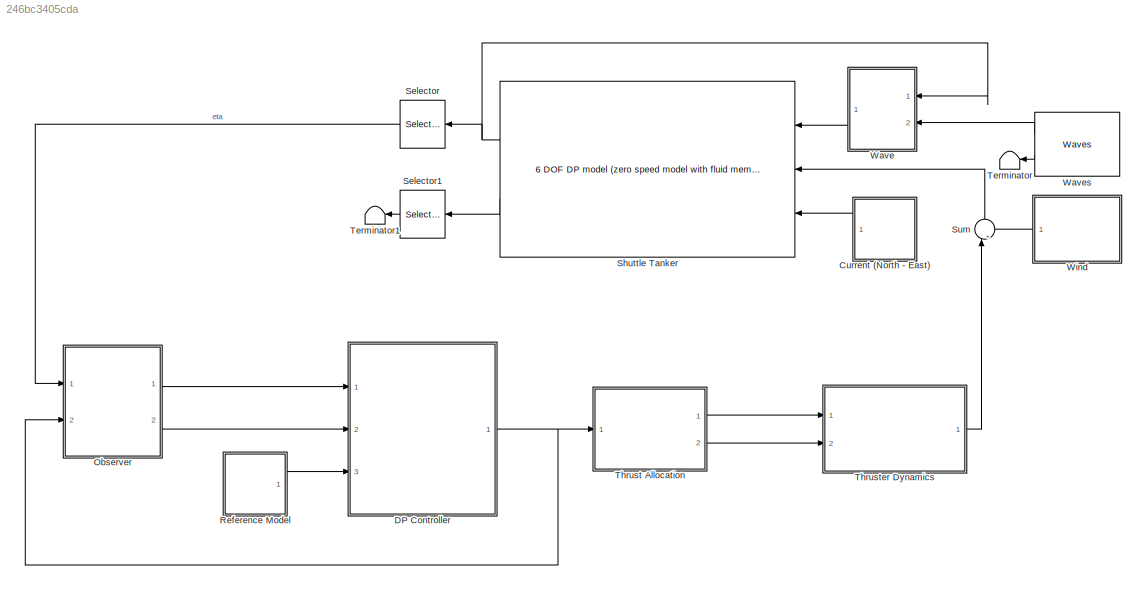
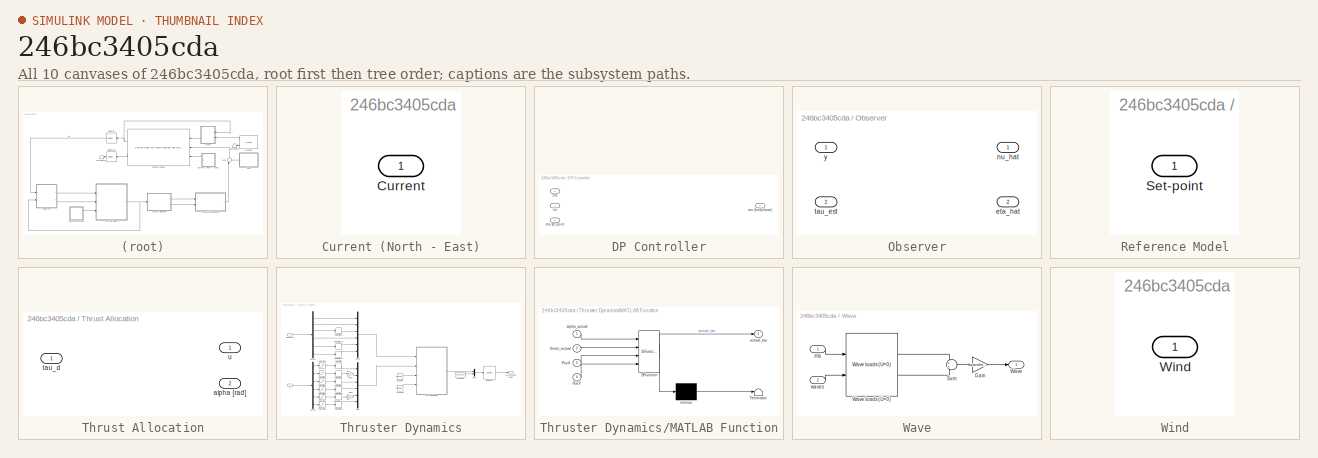
[diagram: thumbnail index - all 10 canvases of the model, root first then tree order]
MODEL slx_246bc3405cda
KIND model
CONFIG AbsTol = auto
CONFIG EnableMultiTasking = off
CONFIG FixedStep = 0.1
CONFIG MaxStep = auto
CONFIG MinStep = auto
CONFIG RelTol = 1e-3
CONFIG SampleTimeConstraint = Unconstrained
CONFIG Solver = FixedStepAuto
CONFIG SolverName = FixedStepAuto
CONFIG StartTime = 0.0
CONFIG StopTime = 500
BLOCK [SubSystem] Current (North - East)
  Ports = [0, 1]
  RequestExecContextInheritance = off
BLOCK [Outport] Current (North - East)/Current
  IconDisplay = Port number
BLOCK [SubSystem] DP Controller
  Ports = [3, 1]
  RequestExecContextInheritance = off
BLOCK [Inport] DP Controller/eta
  IconDisplay = Port number
  Port = 2
BLOCK [Inport] DP Controller/eta set point
  IconDisplay = Port number
  Port = 3
BLOCK [Inport] DP Controller/nu
  IconDisplay = Port number
BLOCK [Outport] DP Controller/tau (body frame)
  IconDisplay = Port number
BLOCK [SubSystem] Observer
  Ports = [2, 2]
  RequestExecContextInheritance = off
BLOCK [Outport] Observer/eta_hat
  IconDisplay = Port number
  Port = 2
BLOCK [Outport] Observer/nu_hat
  IconDisplay = Port number
BLOCK [Inport] Observer/tau_est
  IconDisplay = Port number
  Port = 2
BLOCK [Inport] Observer/y
  IconDisplay = Port number
BLOCK [SubSystem] Reference Model
  Ports = [0, 1]
  RequestExecContextInheritance = off
BLOCK [Outport] Reference Model/Set-point
  IconDisplay = Port number
BLOCK [Selector] Selector
  IndexOptions = Index vector (dialog)
  Indices = [1 2 6]
  InputPortWidth = 6
  OutputSizes = 1
  Ports = [1, 1]
BLOCK [Selector] Selector1
  IndexOptions = Index vector (dialog)
  Indices = [1 2 6]
  InputPortWidth = 6
  OutputSizes = 1
  Ports = [1, 1]
BLOCK [Reference] Shuttle Tanker  REF=marine_hydro/Hydro Library/6 DOF DP model
 (zero speed model with fluid memory)
  Ports = [3, 2]
  SourceBlock = marine_hydro/Hydro Library/6 DOF DP model\n (zero speed model with fluid memory)
  SourceProductName = MSS Hydro
  SourceType = 6 DOF zero speed model
BLOCK [Sum] Sum
  IconShape = round
  InputSameDT = off
  Inputs = |++
  OutDataTypeStr = Inherit: Inherit via internal rule
  Ports = [2, 1]
  SaturateOnIntegerOverflow = off
BLOCK [Terminator] Terminator
BLOCK [Terminator] Terminator1
BLOCK [SubSystem] Thrust Allocation
  Ports = [1, 2]
  RequestExecContextInheritance = off
BLOCK [Outport] Thrust Allocation/alpha [rad]
  IconDisplay = Port number
  Port = 2
BLOCK [Inport] Thrust Allocation/tau_d
  IconDisplay = Port number
BLOCK [Outport] Thrust Allocation/u
  IconDisplay = Port number
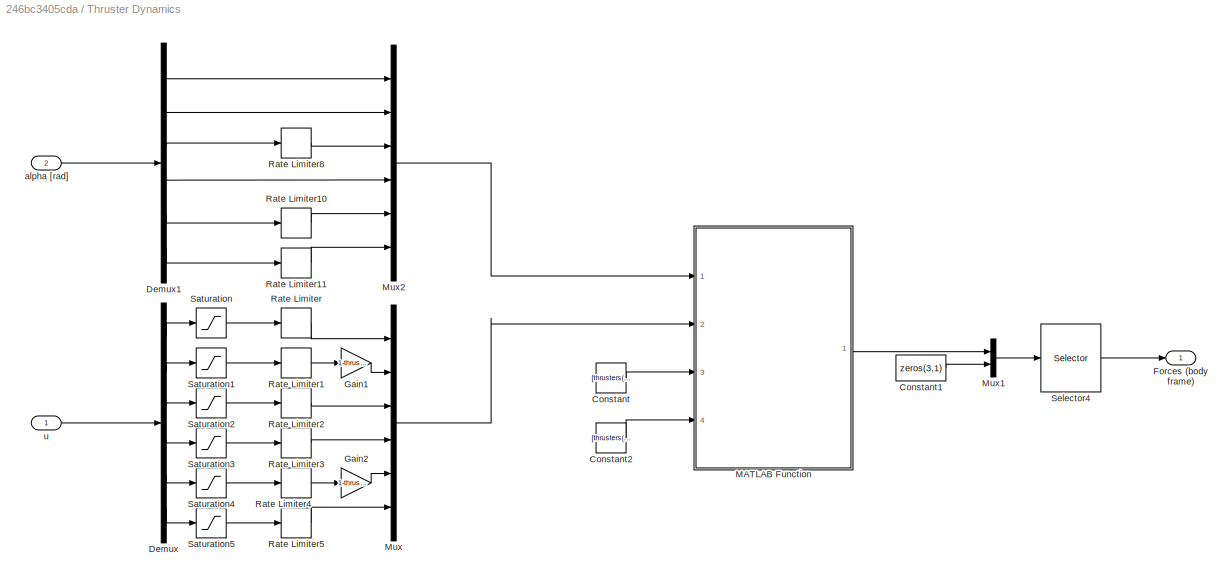
BLOCK [SubSystem] Thruster Dynamics
  Ports = [2, 1]
  RequestExecContextInheritance = off
BLOCK [Constant] Thruster Dynamics/Constant
  Value = [thrusters(1).xposition, thrusters(2).xposition, thrusters(3).xposition, thrusters(4).xposition, thrusters(5).xposition, thrusters(6).xposition]
BLOCK [Constant] Thruster Dynamics/Constant1
  Value = zeros(3,1)
BLOCK [Constant] Thruster Dynamics/Constant2
  Value = [thrusters(1).yposition, thrusters(2).yposition, thrusters(3).yposition, thrusters(4).yposition, thrusters(5).yposition, thrusters(6).yposition]
BLOCK [Demux] Thruster Dynamics/Demux
  DisplayOption = bar
  Outputs = 6
  Ports = [1, 6]
BLOCK [Demux] Thruster Dynamics/Demux1
  DisplayOption = bar
  Outputs = 6
  Ports = [1, 6]
BLOCK [Outport] Thruster Dynamics/Forces (body frame) 
  IconDisplay = Port number
BLOCK [Gain] Thruster Dynamics/Gain1
  Gain = 1-thrusterfault
  OutDataTypeStr = Inherit: Inherit via internal rule
  ParamDataTypeStr = Inherit: Inherit via internal rule
  SaturateOnIntegerOverflow = off
BLOCK [Gain] Thruster Dynamics/Gain2
  Gain = 1-thrusterfault
  OutDataTypeStr = Inherit: Inherit via internal rule
  ParamDataTypeStr = Inherit: Inherit via internal rule
  SaturateOnIntegerOverflow = off
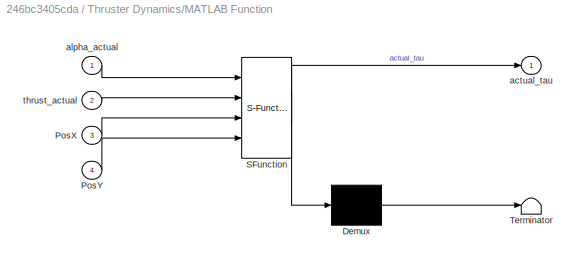
BLOCK [SubSystem] Thruster Dynamics/MATLAB Function
  ErrorFcn = Stateflow.Translate.translate
  PermitHierarchicalResolution = ExplicitOnly
  Ports = [4, 1]
  RequestExecContextInheritance = off
  SFBlockType = MATLAB Function
  TreatAsAtomicUnit = on
BLOCK [Demux] Thruster Dynamics/MATLAB Function/ Demux 
  Outputs = 1
  Ports = [1, 1]
BLOCK [S-Function] Thruster Dynamics/MATLAB Function/ SFunction 
  EnableBusSupport = on
  FunctionName = sf_sfun
  PortCounts = [4 2]
  Ports = [4, 2]
  SFcnIsStateOwnerBlock = off
  SFunctionDeploymentMode = off
  Tag = Stateflow S-Function part2 4
BLOCK [Terminator] Thruster Dynamics/MATLAB Function/ Terminator 
BLOCK [Inport] Thruster Dynamics/MATLAB Function/PosX
  IconDisplay = Port number
  Port = 3
BLOCK [Inport] Thruster Dynamics/MATLAB Function/PosY
  IconDisplay = Port number
  Port = 4
BLOCK [Outport] Thruster Dynamics/MATLAB Function/actual_tau
  IconDisplay = Port number
BLOCK [Inport] Thruster Dynamics/MATLAB Function/alpha_actual
  IconDisplay = Port number
BLOCK [Inport] Thruster Dynamics/MATLAB Function/thrust_actual
  IconDisplay = Port number
  Port = 2
BLOCK [Mux] Thruster Dynamics/Mux
  DisplayOption = bar
  Inputs = 6
  Ports = [6, 1]
BLOCK [Mux] Thruster Dynamics/Mux1
  DisplayOption = bar
  Inputs = 2
  Ports = [2, 1]
BLOCK [Mux] Thruster Dynamics/Mux2
  DisplayOption = bar
  Inputs = 6
  Ports = [6, 1]
BLOCK [RateLimiter] Thruster Dynamics/Rate Limiter
  FallingSlewLimit = -thrusters(1).rate
  RisingSlewLimit = thrusters(1).rate
  SampleTimeMode = inherited
BLOCK [RateLimiter] Thruster Dynamics/Rate Limiter1
  FallingSlewLimit = -thrusters(2).rate
  RisingSlewLimit = thrusters(2).rate
  SampleTimeMode = inherited
BLOCK [RateLimiter] Thruster Dynamics/Rate Limiter10
  FallingSlewLimit = -thrusters(5).rotationspeed
  RisingSlewLimit = thrusters(5).rotationspeed
  SampleTimeMode = inherited
BLOCK [RateLimiter] Thruster Dynamics/Rate Limiter11
  FallingSlewLimit = -thrusters(6).rotationspeed
  RisingSlewLimit = thrusters(6).rotationspeed
  SampleTimeMode = inherited
BLOCK [RateLimiter] Thruster Dynamics/Rate Limiter2
  FallingSlewLimit = -thrusters(3).rate
  RisingSlewLimit = thrusters(3).rate
  SampleTimeMode = inherited
BLOCK [RateLimiter] Thruster Dynamics/Rate Limiter3
  FallingSlewLimit = -thrusters(4).rate
  RisingSlewLimit = thrusters(4).rate
  SampleTimeMode = inherited
BLOCK [RateLimiter] Thruster Dynamics/Rate Limiter4
  FallingSlewLimit = -thrusters(5).rate
  RisingSlewLimit = thrusters(5).rate
  SampleTimeMode = inherited
BLOCK [RateLimiter] Thruster Dynamics/Rate Limiter5
  FallingSlewLimit = -thrusters(6).rate
  RisingSlewLimit = thrusters(6).rate
  SampleTimeMode = inherited
BLOCK [RateLimiter] Thruster Dynamics/Rate Limiter8
  FallingSlewLimit = -thrusters(3).rotationspeed
  RisingSlewLimit = thrusters(3).rotationspeed
  SampleTimeMode = inherited
BLOCK [Saturate] Thruster Dynamics/Saturation
  InputPortMap = u0
  LowerLimit = -thrusters(1).thrust
  Ports = [1, 1]
  UpperLimit = thrusters(1).thrust
BLOCK [Saturate] Thruster Dynamics/Saturation1
  InputPortMap = u0
  LowerLimit = -thrusters(2).thrust
  Ports = [1, 1]
  UpperLimit = thrusters(2).thrust
BLOCK [Saturate] Thruster Dynamics/Saturation2
  InputPortMap = u0
  LowerLimit = -thrusters(3).thrust
  Ports = [1, 1]
  UpperLimit = thrusters(3).thrust
BLOCK [Saturate] Thruster Dynamics/Saturation3
  InputPortMap = u0
  LowerLimit = -thrusters(4).thrust
  Ports = [1, 1]
  UpperLimit = thrusters(4).thrust
BLOCK [Saturate] Thruster Dynamics/Saturation4
  InputPortMap = u0
  LowerLimit = -thrusters(5).thrust
  Ports = [1, 1]
  UpperLimit = thrusters(5).thrust
BLOCK [Saturate] Thruster Dynamics/Saturation5
  InputPortMap = u0
  LowerLimit = -thrusters(6).thrust
  Ports = [1, 1]
  UpperLimit = thrusters(6).thrust
BLOCK [Selector] Thruster Dynamics/Selector4
  IndexOptions = Index vector (dialog)
  Indices = [1 2 4 5 6 3]
  InputPortWidth = 6
  OutputSizes = 1
  Ports = [1, 1]
BLOCK [Inport] Thruster Dynamics/alpha [rad]
  IconDisplay = Port number
  Port = 2
BLOCK [Inport] Thruster Dynamics/u
  IconDisplay = Port number
BLOCK [SubSystem] Wave
  Ports = [2, 1]
  RequestExecContextInheritance = off
BLOCK [Gain] Wave/Gain
  Gain = waveforces
  OutDataTypeStr = Inherit: Inherit via internal rule
  ParamDataTypeStr = Inherit: Inherit via internal rule
  SaturateOnIntegerOverflow = off
BLOCK [Sum] Wave/Sum
  IconShape = round
  InputSameDT = off
  OutDataTypeStr = Inherit: Inherit via internal rule
  Ports = [2, 1]
  SaturateOnIntegerOverflow = off
BLOCK [Outport] Wave/Wave
  IconDisplay = Port number
BLOCK [Reference] Wave/Wave loads (U=0)  REF=marine_hydro/Hydro Library/Wave loads (U=0)
  Ports = [2, 2]
  SourceBlock = marine_hydro/Hydro Library/Wave loads (U=0)
  SourceProductName = MSS Hydro
  SourceType = SubSystem
BLOCK [Inport] Wave/eta
  IconDisplay = Port number
BLOCK [Inport] Wave/waves
  IconDisplay = Port number
  Port = 2
BLOCK [Reference] Waves  REF=marine_gnc/Environment/Waves/Waves  (lib defined in mdl_10d96c221ba8, mdl_45f1105420c6)
  Ports = [0, 2]
  SourceBlock = marine_gnc/Environment/Waves/Waves
  SourceProductName = MSS GNC
  SourceType = Waves
BLOCK [SubSystem] Wind
  Ports = [0, 1]
  RequestExecContextInheritance = off
BLOCK [Outport] Wind/Wind
  IconDisplay = Port number
LINE Current (North - East):1 -> Shuttle Tanker:3
NET DP Controller:1 -> Observer:2, Thrust Allocation:1
LINE Observer:1 -> DP Controller:1
LINE Observer:2 -> DP Controller:2
LINE Reference Model:1 -> DP Controller:3
LINE Selector1:1 -> Terminator1:1
LINE Selector:1 -> Observer:1
NET Shuttle Tanker:1 -> Selector:1, Wave:1
LINE Shuttle Tanker:2 -> Selector1:1
LINE Sum:1 -> Shuttle Tanker:2
LINE Thrust Allocation:1 -> Thruster Dynamics:1
LINE Thrust Allocation:2 -> Thruster Dynamics:2
LINE Thruster Dynamics/Constant1:1 -> Thruster Dynamics/Mux1:2
LINE Thruster Dynamics/Constant2:1 -> Thruster Dynamics/MATLAB Function:4
LINE Thruster Dynamics/Constant:1 -> Thruster Dynamics/MATLAB Function:3
LINE Thruster Dynamics/Demux1:1 -> Thruster Dynamics/Mux2:1
LINE Thruster Dynamics/Demux1:2 -> Thruster Dynamics/Mux2:2
LINE Thruster Dynamics/Demux1:3 -> Thruster Dynamics/Rate Limiter8:1
LINE Thruster Dynamics/Demux1:4 -> Thruster Dynamics/Mux2:4
LINE Thruster Dynamics/Demux1:5 -> Thruster Dynamics/Rate Limiter10:1
LINE Thruster Dynamics/Demux1:6 -> Thruster Dynamics/Rate Limiter11:1
LINE Thruster Dynamics/Demux:1 -> Thruster Dynamics/Saturation:1
LINE Thruster Dynamics/Demux:2 -> Thruster Dynamics/Saturation1:1
LINE Thruster Dynamics/Demux:3 -> Thruster Dynamics/Saturation2:1
LINE Thruster Dynamics/Demux:4 -> Thruster Dynamics/Saturation3:1
LINE Thruster Dynamics/Demux:5 -> Thruster Dynamics/Saturation4:1
LINE Thruster Dynamics/Demux:6 -> Thruster Dynamics/Saturation5:1
LINE Thruster Dynamics/Gain1:1 -> Thruster Dynamics/Mux:2
LINE Thruster Dynamics/Gain2:1 -> Thruster Dynamics/Mux:5
LINE Thruster Dynamics/MATLAB Function:1 -> Thruster Dynamics/Mux1:1
LINE Thruster Dynamics/Mux1:1 -> Thruster Dynamics/Selector4:1
LINE Thruster Dynamics/Mux2:1 -> Thruster Dynamics/MATLAB Function:1
LINE Thruster Dynamics/Mux:1 -> Thruster Dynamics/MATLAB Function:2
LINE Thruster Dynamics/Rate Limiter10:1 -> Thruster Dynamics/Mux2:5
LINE Thruster Dynamics/Rate Limiter11:1 -> Thruster Dynamics/Mux2:6
LINE Thruster Dynamics/Rate Limiter1:1 -> Thruster Dynamics/Gain1:1
LINE Thruster Dynamics/Rate Limiter2:1 -> Thruster Dynamics/Mux:3
LINE Thruster Dynamics/Rate Limiter3:1 -> Thruster Dynamics/Mux:4
LINE Thruster Dynamics/Rate Limiter4:1 -> Thruster Dynamics/Gain2:1
LINE Thruster Dynamics/Rate Limiter5:1 -> Thruster Dynamics/Mux:6
LINE Thruster Dynamics/Rate Limiter8:1 -> Thruster Dynamics/Mux2:3
LINE Thruster Dynamics/Rate Limiter:1 -> Thruster Dynamics/Mux:1
LINE Thruster Dynamics/Saturation1:1 -> Thruster Dynamics/Rate Limiter1:1
LINE Thruster Dynamics/Saturation2:1 -> Thruster Dynamics/Rate Limiter2:1
LINE Thruster Dynamics/Saturation3:1 -> Thruster Dynamics/Rate Limiter3:1
LINE Thruster Dynamics/Saturation4:1 -> Thruster Dynamics/Rate Limiter4:1
LINE Thruster Dynamics/Saturation5:1 -> Thruster Dynamics/Rate Limiter5:1
LINE Thruster Dynamics/Saturation:1 -> Thruster Dynamics/Rate Limiter:1
LINE Thruster Dynamics/Selector4:1 -> Thruster Dynamics/Forces (body frame) :1
LINE Thruster Dynamics/alpha [rad]:1 -> Thruster Dynamics/Demux1:1
LINE Thruster Dynamics/u:1 -> Thruster Dynamics/Demux:1
LINE Thruster Dynamics:1 -> Sum:1
LINE Wave/Gain:1 -> Wave/Wave:1
LINE Wave/Sum:1 -> Wave/Gain:1
LINE Wave/Wave loads (U=0):1 -> Wave/Sum:1
LINE Wave/Wave loads (U=0):2 -> Wave/Sum:2
LINE Wave/eta:1 -> Wave/Wave loads (U=0):1
LINE Wave/waves:1 -> Wave/Wave loads (U=0):2
LINE Wave:1 -> Shuttle Tanker:1
LINE Waves:1 -> Wave:2
LINE Waves:2 -> Terminator:1
LINE Wind:1 -> Sum:2
note: NET lines group one-source signal fan-out (src -> all destinations, sorted); 1:1 wires keep LINE
CHART Thruster Dynamics/MATLAB Function states=1 transitions=1
  STATE_LABEL 'eML_blk_kernel()'
  STATE_LABEL 'SCRIPT:\nfunction actual_tau   = fcn(alpha_actual,thrust_actual,PosX,PosY)\n\n    Alpha_surge =[cos(alpha_actual(1)) cos(alpha_actual(2)) cos(alpha_actual(3)) cos(alpha_actual(4)) cos(alpha_actual(5)) cos(alpha_actual(6))];  \n    Alpha_sway = [sin(alpha_actual(1)) sin(alpha_actual(2)) sin(alpha_actual(3)) sin(alpha_actual(4)) sin(alpha_actual(5)) sin(alpha_actual(6))];\n    Alpha_yaw = [sin(alpha_actu...<+451ch>'
